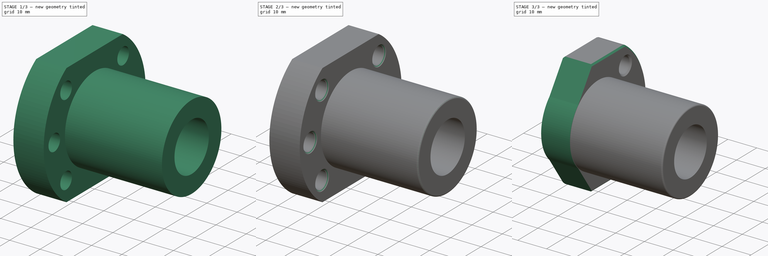
[diagram: build sequence overview — one tinted view per stage of 3, left to right]
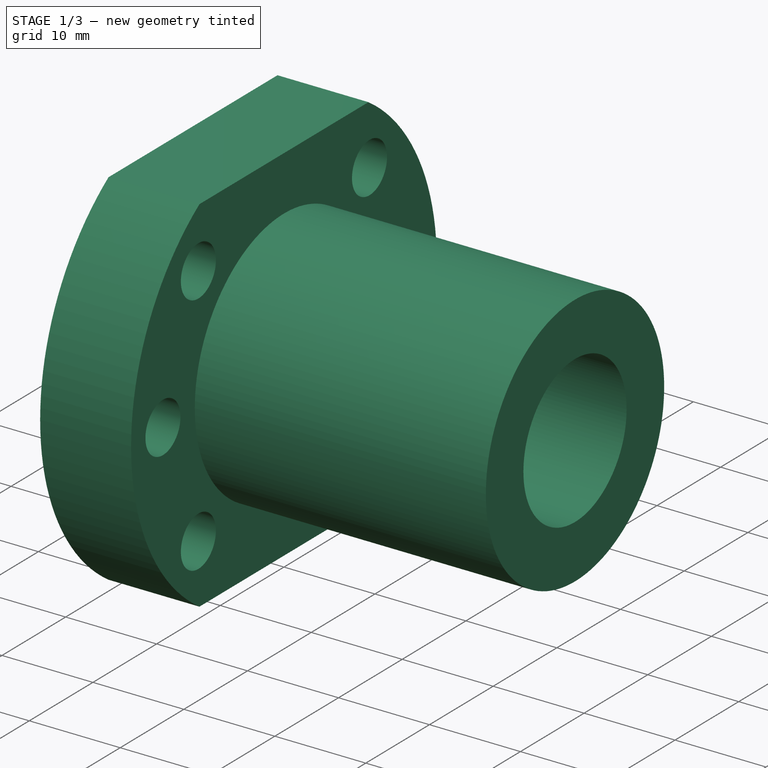
[diagram: stage 1 of 3 — iso view after this stage's code; geometry added in this stage tinted green]
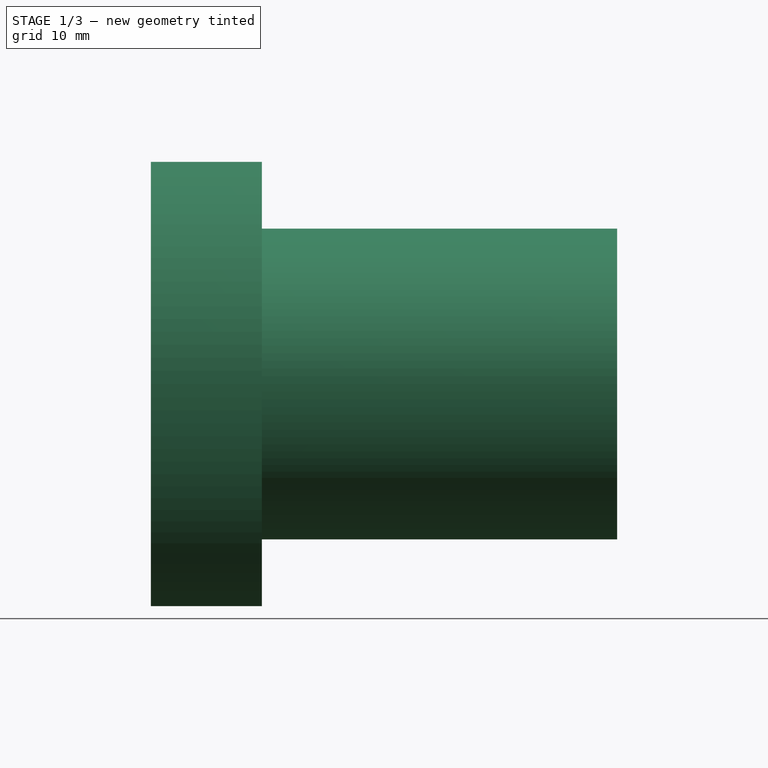
[diagram: stage 1 of 3 — front view after this stage's code; geometry added in this stage tinted green]
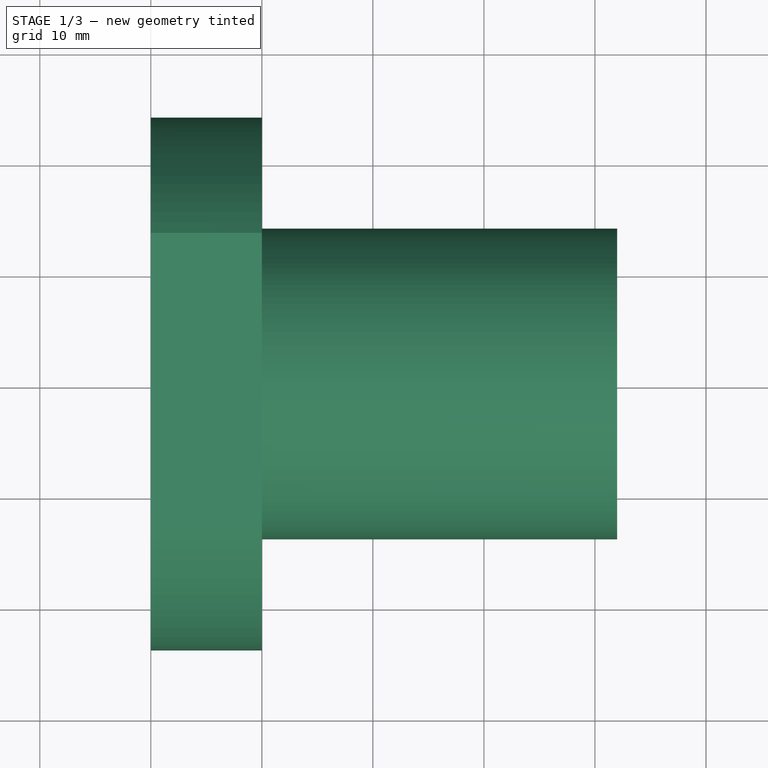
[diagram: stage 1 of 3 — top view after this stage's code; geometry added in this stage tinted green]
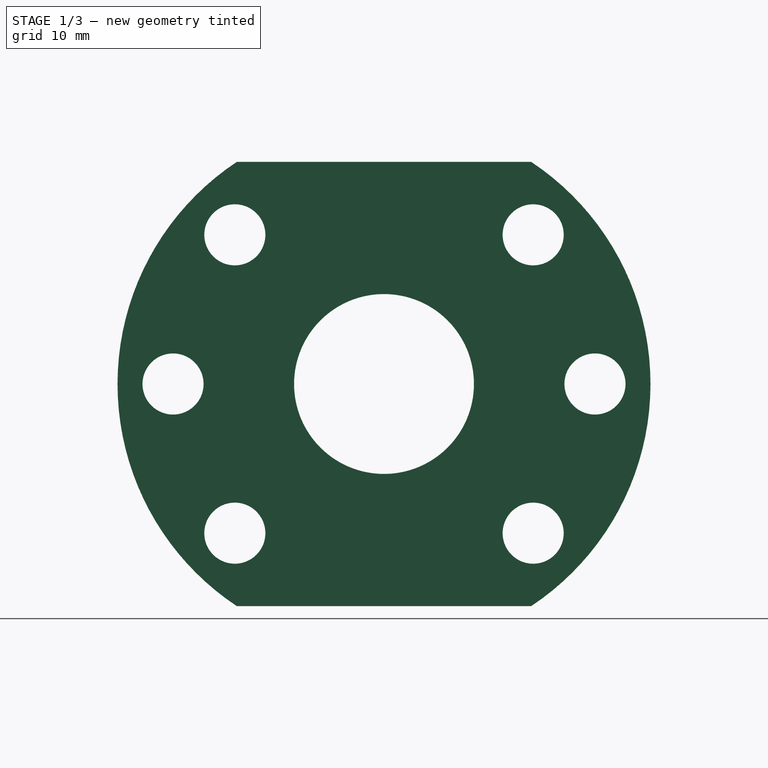
[diagram: stage 1 of 3 — right view after this stage's code; geometry added in this stage tinted green]
FCSTD DOCUMENT  (FreeCAD 0.16R5470 (Git))
Label: RM1605-ball-nut-X-axis
License: CreativeCommons Attribution-ShareAlike
LicenseURL: http://creativecommons.org/licenses/by-sa/4.0/
objects: Sketcher::SketchObject×3, PartDesign::Pad×2, PartDesign::Chamfer×2, PartDesign::Fillet×1, PartDesign::Pocket×1
note: 12 computed .brp shape members not serialized (recipe doc carries the construction recipe); baked Part::Feature solids carry a one-line shape summary decoded from their .brp

FEATURE [Sketcher::SketchObject] Sketch
  Placement = pos=(0,0,0) rot=(0.57735,0.57735,0.57735;2.0944rad)
  sketch-geometry (11):
    g0: ArcOfCircle CenterX=0 CenterY=0 CenterZ=0 NormalX=0 NormalY=0 NormalZ=1 Radius=24 StartAngle=2.15648 EndAngle=4.1267
    g1: ArcOfCircle CenterX=0 CenterY=0 CenterZ=0 NormalX=0 NormalY=0 NormalZ=1 Radius=24 StartAngle=5.29807 EndAngle=7.2683
    g2: LineSegment StartX=-13.2665 StartY=-20 StartZ=0 EndX=13.2665 EndY=-20 EndZ=0
    g3: LineSegment StartX=-13.2665 StartY=20 StartZ=0 EndX=13.2665 EndY=20 EndZ=0
    g4: Circle CenterX=-13.4351 CenterY=13.435 CenterZ=0 NormalX=0 NormalY=0 NormalZ=1 Radius=2.75
    g5: Circle CenterX=-19 CenterY=0 CenterZ=0 NormalX=0 NormalY=0 NormalZ=1 Radius=2.75
    g6: Circle CenterX=-13.4351 CenterY=-13.435 CenterZ=0 NormalX=0 NormalY=0 NormalZ=1 Radius=2.75
    g7: Circle CenterX=13.4351 CenterY=13.435 CenterZ=0 NormalX=0 NormalY=0 NormalZ=1 Radius=2.75
    g8: Circle CenterX=19 CenterY=0 CenterZ=0 NormalX=0 NormalY=0 NormalZ=1 Radius=2.75
    g9: Circle CenterX=13.4351 CenterY=-13.435 CenterZ=0 NormalX=0 NormalY=0 NormalZ=1 Radius=2.75
    g10: Circle CenterX=0 CenterY=0 CenterZ=0 NormalX=0 NormalY=0 NormalZ=1 Radius=8.1
  constraints (31):
    c: Equal(g0,g1)
    c: PointOnObject(g1,g-1)
    c: PointOnObject(g0,g-1)
    c: PointOnObject(g0,g-2)
    c: PointOnObject(g1,g-2)
    c: Coincident(g0,g2)
    c: Coincident(g1,g2)
    c: Coincident(g3,g1)
    c: Coincident(g0,g3)
    c: DistanceY(g1,g1) = 40
    c: Radius(g0) = 24
    c: Symmetric(g0,g0,g-1)
    c: Horizontal(g3)
    c: Horizontal(g2)
    c: Equal(g4,g7)
    c: Equal(g5,g8)
    c: Equal(g9,g6)
    c: Equal(g9,g8)
    c: Equal(g8,g7)
    c: PointOnObject(g5,g-1)
    c: PointOnObject(g8,g-1)
    c: DistanceX(g5,g8) = 38
    c: Radius(g4) = 2.75
    c: Symmetric(g8,g5,g-2)
    c: Symmetric(g6,g9,g-2)
    c: Symmetric(g7,g4,g-2)
    c: Symmetric(g6,g4,g-1)
    c: Distance(g-1,g7) = 19
    c: DistanceY(g-1,g9) = -13.435
    c: Coincident(g10,g-1)
    c: Radius(g10) = 8.1
FEATURE [PartDesign::Pad] Pad
  Length = 10
  Length2 = 100
  Placement = pos=(0,0,0) rot=(0.57735,0.57735,0.57735;2.0944rad)
  Sketch = -> Sketch
  Type = 0
FEATURE [Sketcher::SketchObject] Sketch001
  Placement = pos=(10,0,0) rot=(0.57735,0.57735,0.57735;2.0944rad)
  Support = -> Pad [Face13]
  sketch-geometry (2):
    g0: Circle CenterX=0 CenterY=0 CenterZ=0 NormalX=0 NormalY=0 NormalZ=1 Radius=8.1
    g1: Circle CenterX=0 CenterY=0 CenterZ=0 NormalX=0 NormalY=0 NormalZ=1 Radius=14
  constraints (4):
    c: Coincident(g0,g-1)
    c: Radius(g0) = 8.1
    c: Coincident(g-1,g1)
    c: Radius(g1) = 14
FEATURE [PartDesign::Pad] Pad001
  Length = 32
  Length2 = 100
  Placement = pos=(0,0,0) rot=(0.57735,0.57735,0.57735;2.0944rad)
  Sketch = -> Sketch001
  Type = 0
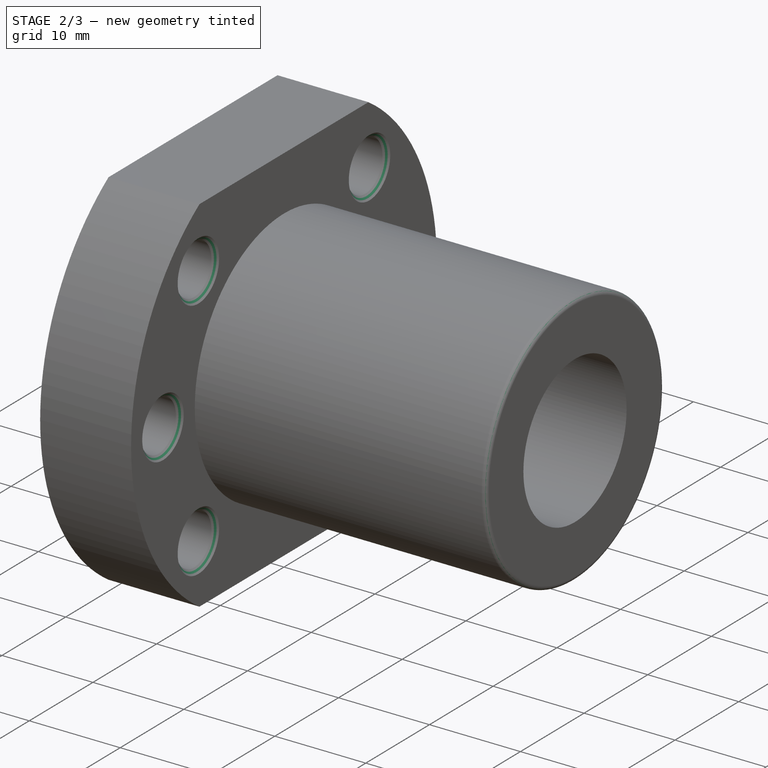
[diagram: stage 2 of 3 — iso view after this stage's code; geometry added in this stage tinted green]
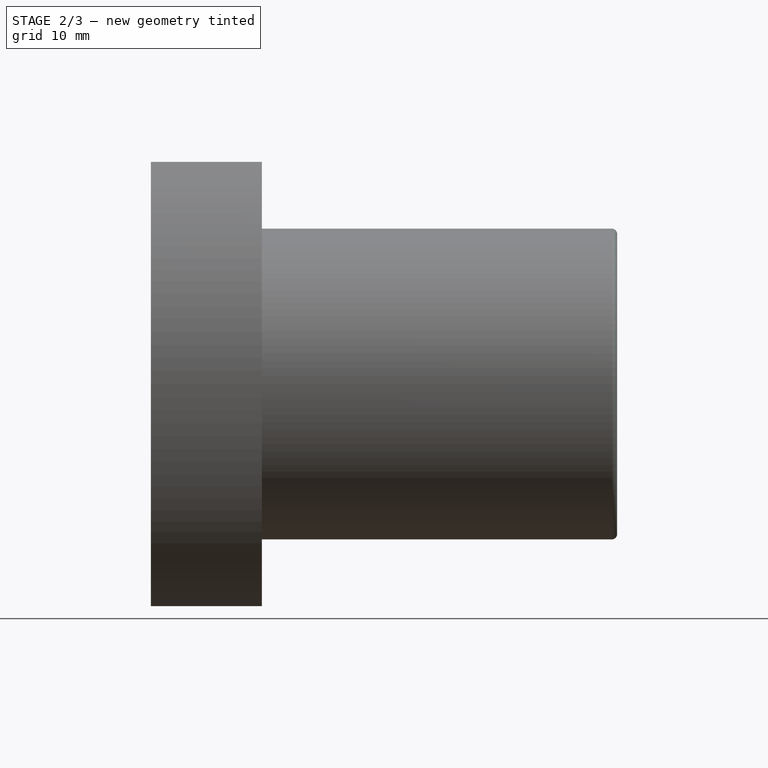
[diagram: stage 2 of 3 — front view after this stage's code; geometry added in this stage tinted green]
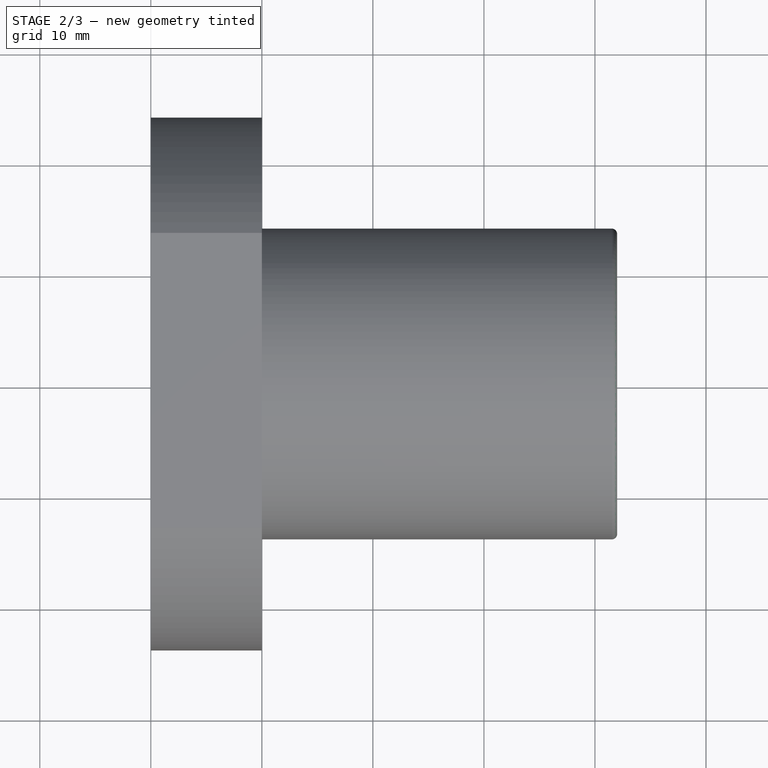
[diagram: stage 2 of 3 — top view after this stage's code; geometry added in this stage tinted green]
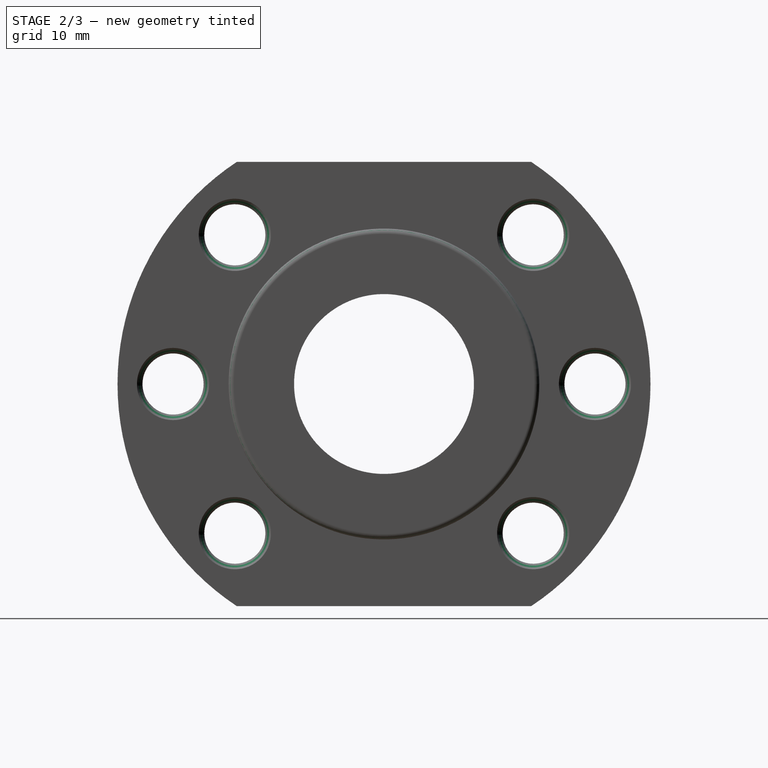
[diagram: stage 2 of 3 — right view after this stage's code; geometry added in this stage tinted green]
FEATURE [PartDesign::Chamfer] Chamfer
  Base = -> Pad001 [Edge17,Edge22,Edge14,Edge26,Edge18,Edge21,Edge16,Edge24,Edge13,Edge25,Edge15,Edge23]
  Placement = pos=(0,0,0) rot=(0.57735,0.57735,0.57735;2.0944rad)
  Size = 0.5
FEATURE [PartDesign::Fillet] Fillet
  Base = -> Chamfer [Edge43]
  Placement = pos=(0,0,0) rot=(0.57735,0.57735,0.57735;2.0944rad)
  Radius = 0.5
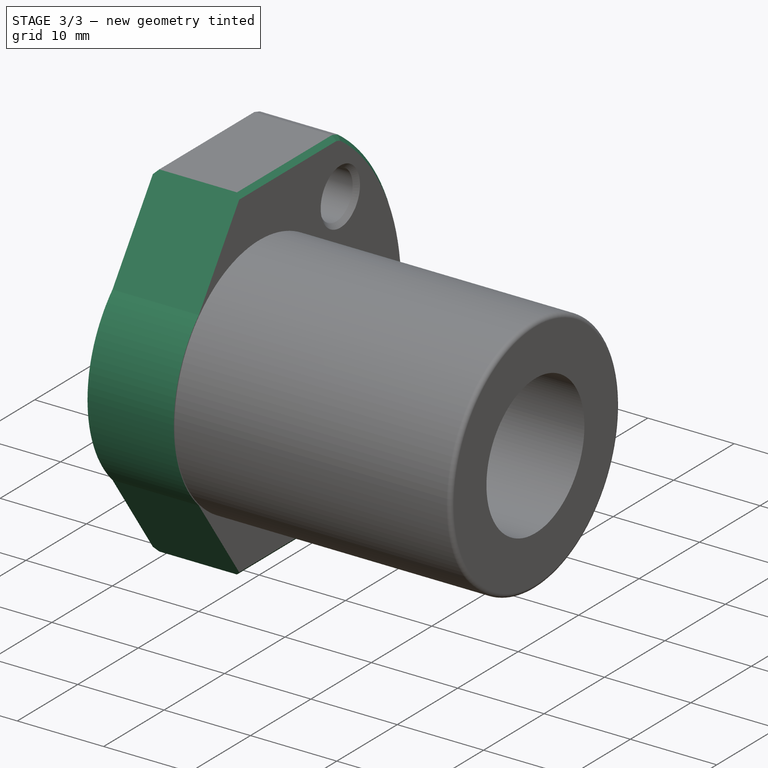
[diagram: stage 3 of 3 — iso view after this stage's code; geometry added in this stage tinted green]
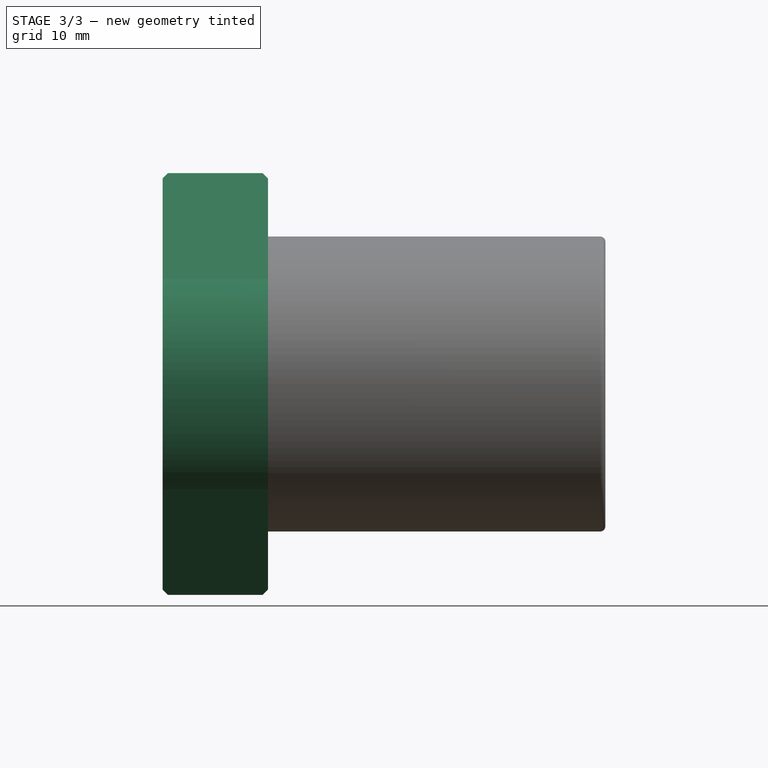
[diagram: stage 3 of 3 — front view after this stage's code; geometry added in this stage tinted green]
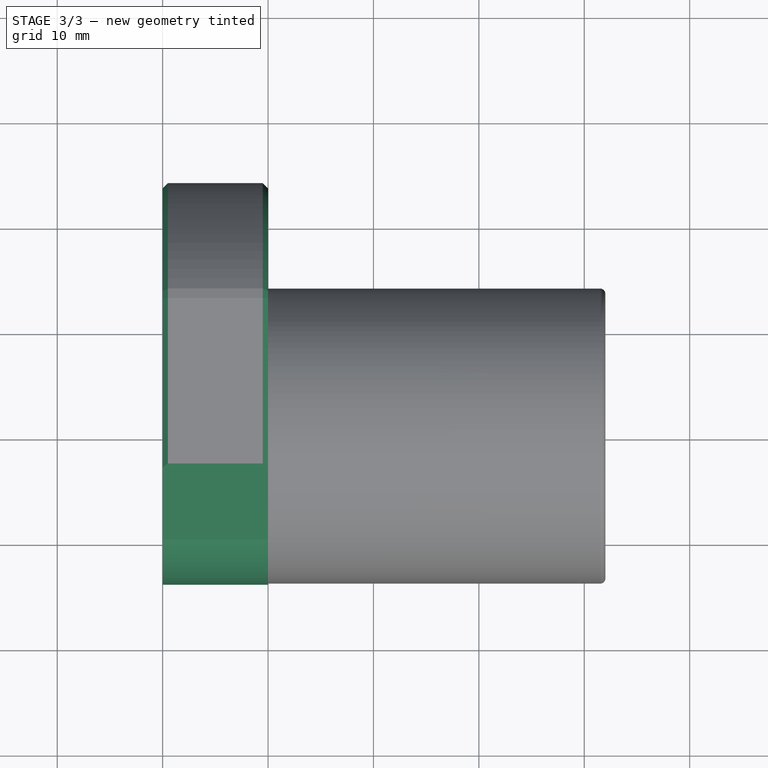
[diagram: stage 3 of 3 — top view after this stage's code; geometry added in this stage tinted green]
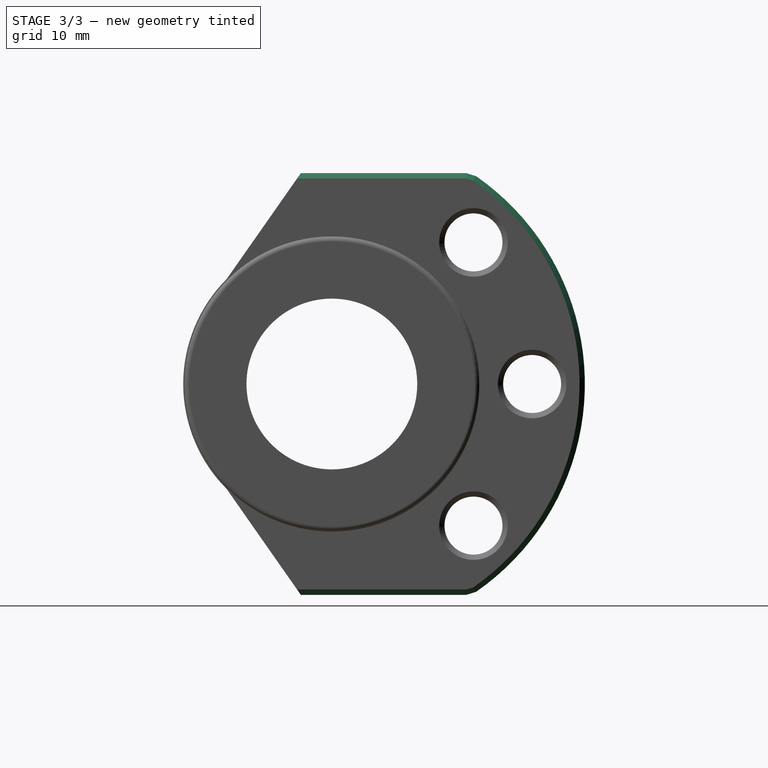
[diagram: stage 3 of 3 — right view after this stage's code; geometry added in this stage tinted green]
FEATURE [PartDesign::Chamfer] Chamfer001
  Base = -> Fillet [Edge31,Edge32,Edge10,Edge20,Edge34,Edge13,Edge21,Edge33,Edge12,Edge23,Edge11,Edge22]
  Placement = pos=(0,0,0) rot=(0.57735,0.57735,0.57735;2.0944rad)
  Size = 0.5
FEATURE [Sketcher::SketchObject] Sketch002
  Placement = pos=(0,0,0) rot=(0.57735,0.57735,-0.57735;4.18879rad)
  Support = -> Chamfer001 [Face1]
  sketch-geometry (10):
    g0: ArcOfCircle CenterX=0 CenterY=0 CenterZ=0 NormalX=0 NormalY=0 NormalZ=1 Radius=14.1 StartAngle=2.35619 EndAngle=3.92699
    g1: ArcOfCircle CenterX=0 CenterY=0 CenterZ=0 NormalX=0 NormalY=0 NormalZ=1 Radius=27 StartAngle=1.5708 EndAngle=4.71239
    g2: LineSegment StartX=18 StartY=-20.3 StartZ=0 EndX=18 EndY=-27 EndZ=0
    g3: LineSegment StartX=18 StartY=-27 StartZ=0 EndX=8e-12 EndY=-27 EndZ=0
    g4: LineSegment StartX=-3e-12 StartY=27 StartZ=0 EndX=18 EndY=27 EndZ=0
    g5: LineSegment StartX=18 StartY=27 StartZ=0 EndX=18 EndY=20.3 EndZ=0
    g6: LineSegment StartX=18 StartY=20.3 StartZ=0 EndX=-2.73721 EndY=20.3 EndZ=0
    g7: LineSegment StartX=-9.97021 StartY=9.97021 StartZ=0 EndX=-2.73721 EndY=20.3 EndZ=0
    g8: LineSegment StartX=-9.97021 StartY=-9.97021 StartZ=0 EndX=-2.73721 EndY=-20.3 EndZ=0
    g9: LineSegment StartX=-2.73721 StartY=-20.3 StartZ=0 EndX=18 EndY=-20.3 EndZ=0
  constraints (31):
    c: PointOnObject(g0,g-1)
    c: PointOnObject(g1,g-2)
    c: PointOnObject(g1,g-2)
    c: Radius(g1) = 27
    c: Coincident(g1,g-1)
    c: Coincident(g2,g3)
    c: Coincident(g3,g1)
    c: Horizontal(g3)
    c: Vertical(g2)
    c: DistanceX(g-1,g2) = 18
    c: Coincident(g5,g4)
    c: Horizontal(g4)
    c: Coincident(g1,g4)
    c: Vertical(g5)
    c: DistanceX(g-1,g4) = 18
    c: Radius(g0) = 14.1
    c: Coincident(g0,g-1)
    c: Symmetric(g0,g0,g-1)
    c: Angle(g0) = 1.5708
    c: DistanceY(g-1,g5) = 20.3
    c: Coincident(g5,g6)
    c: Horizontal(g6)
    c: Coincident(g7,g0)
    c: Coincident(g7,g6)
    c: Angle(g7,g6) = 2.18166
    c: DistanceY(g-1,g2) = -20.3
    c: Coincident(g9,g2)
    c: Horizontal(g9)
    c: Coincident(g8,g9)
    c: Coincident(g8,g0)
    c: Angle(g9,g8) = 2.18166
FEATURE [PartDesign::Pocket] Pocket
  Length = 10
  Placement = pos=(0,0,0) rot=(0.57735,0.57735,0.57735;2.0944rad)
  Sketch = -> Sketch002
  Type = 0
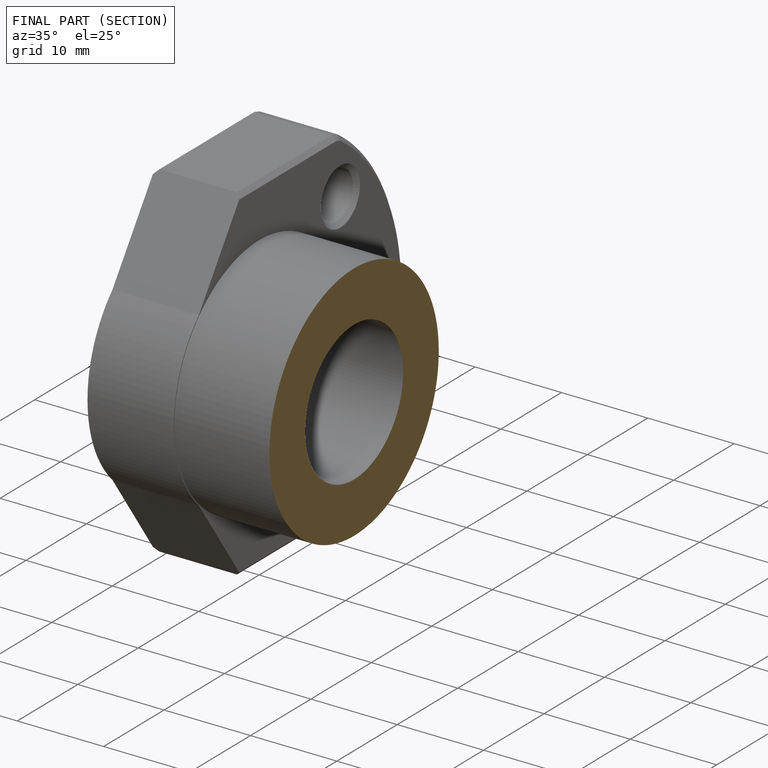
[diagram: finished part — half-section view (interior)]
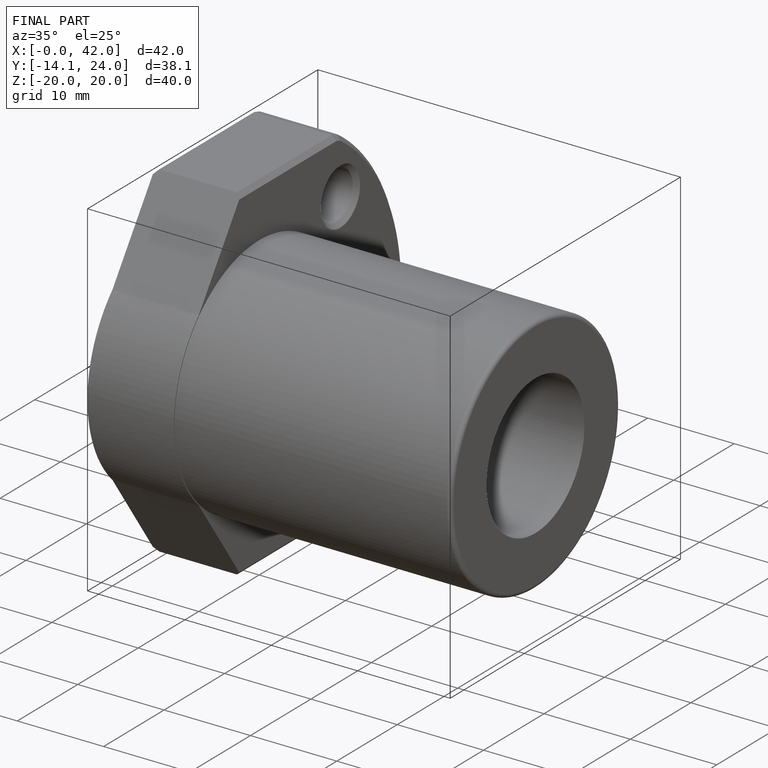
[diagram: finished part — iso view with bounding-box wireframe]
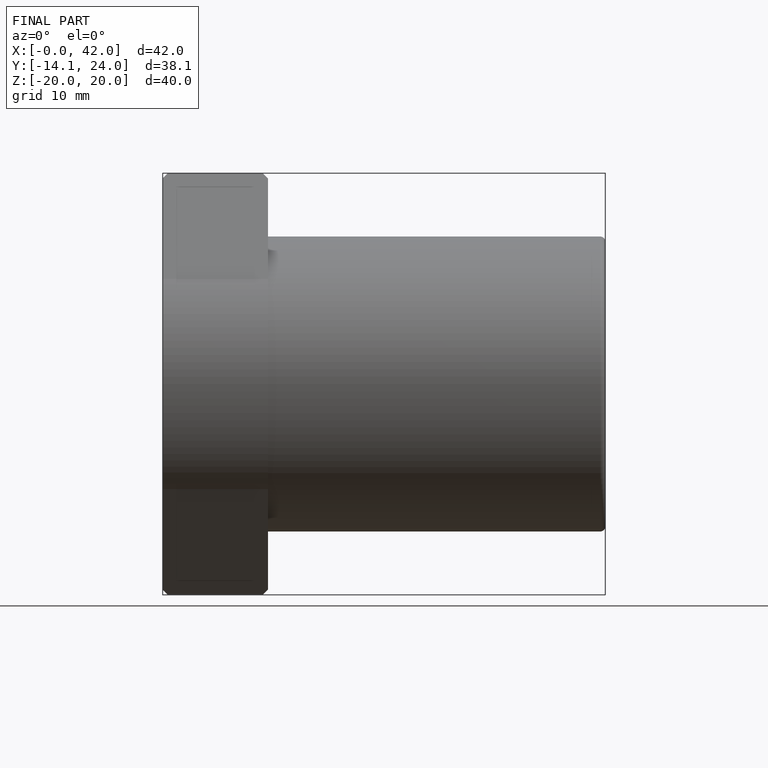
[diagram: finished part — front view with bounding-box wireframe]
